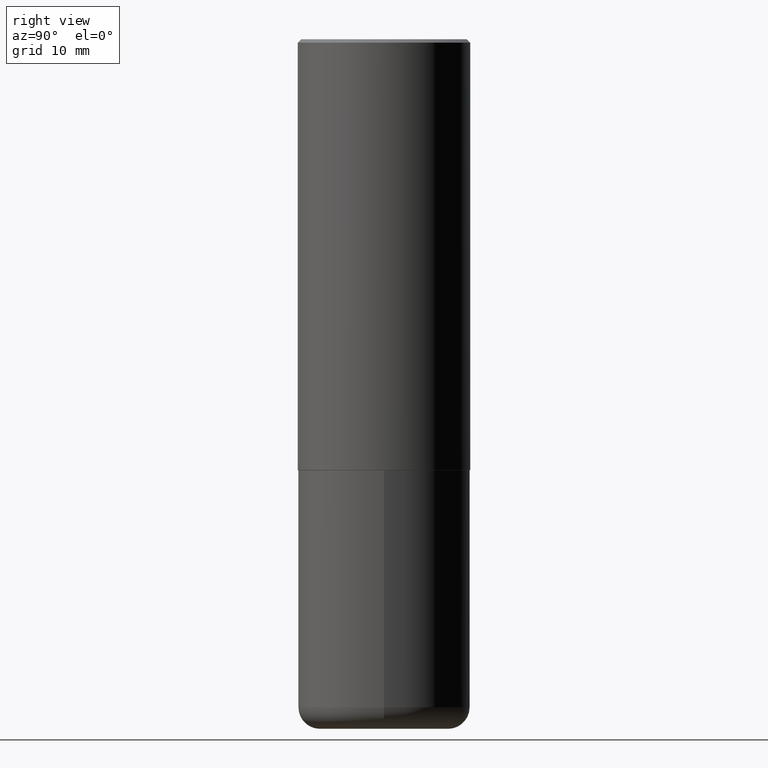
[diagram: clean part render]
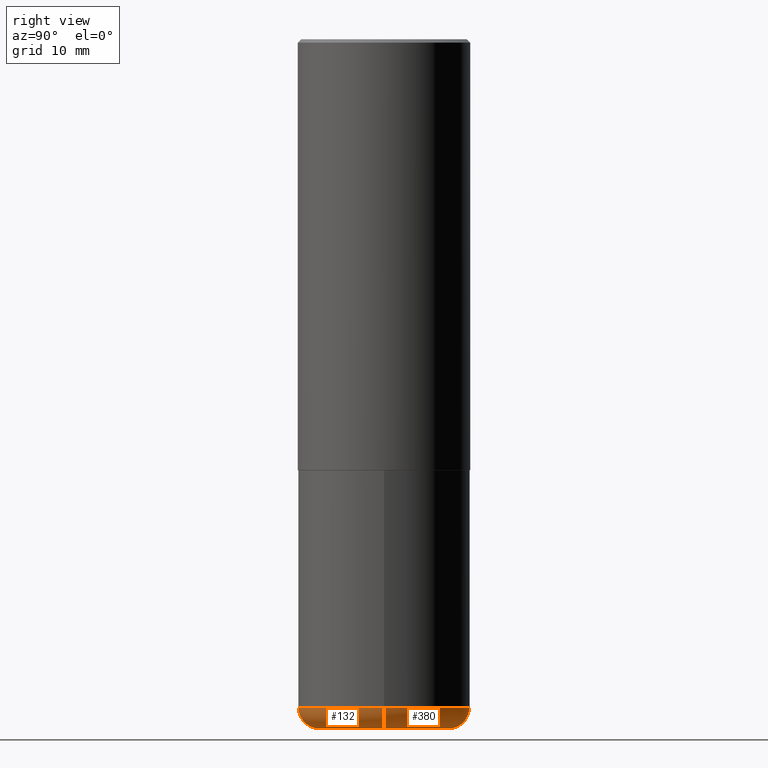
[diagram: same view with one multi-face feature highlighted, each face labeled with its STEP entity id]
A machine part, right view. The highlighted faces form ONE feature: a constant-radius fillet chain: 2 tangent blend faces with common blend radius 3.175 mm. The faces share edges in the B-rep.
Their STEP definitions:
[1] entity #380 (Torus):
#10 = CIRCLE ( 'NONE', #190, 0.1249999999999999584 ) ;
#33 = FACE_OUTER_BOUND ( 'NONE', #406, .T. ) ;
#49 = AXIS2_PLACEMENT_3D ( 'NONE', #301, #145, #305 ) ;
#66 = CARTESIAN_POINT ( 'NONE',  ( 0.5000000000000000000, -1.702097152686032086E-14, -3.875000000000000000 ) ) ;
#87 = AXIS2_PLACEMENT_3D ( 'NONE', #235, #358, #362 ) ;
#89 = DIRECTION ( 'NONE',  ( -1.000000000000000000, 7.105427357600998703E-15, 0.000000000000000000 ) ) ;
#119 = ORIENTED_EDGE ( 'NONE', *, *, #363, .F. ) ;
#127 = DIRECTION ( 'NONE',  ( -6.982962677686266711E-15, -1.000000000000000000, 3.491481338843145583E-15 ) ) ;
#143 = CARTESIAN_POINT ( 'NONE',  ( 0.3749999999999999445, -1.658453635950493392E-14, -4.000000000000000000 ) ) ;
#145 = DIRECTION ( 'NONE',  ( -2.445468806185136597E-29, 3.491481338843145583E-15, 1.000000000000000000 ) ) ;
#146 = EDGE_CURVE ( 'NONE', #315, #251, #10, .T. ) ;
#149 = ORIENTED_EDGE ( 'NONE', *, *, #370, .F. ) ;
#153 = AXIS2_PLACEMENT_3D ( 'NONE', #367, #127, #262 ) ;
#165 = VERTEX_POINT ( 'NONE', #66 ) ;
#176 = CIRCLE ( 'NONE', #49, 0.3749999999999999445 ) ;
#179 = CARTESIAN_POINT ( 'NONE',  ( -0.3749999999999999445, -1.063908330274444739E-14, -4.000000000000000000 ) ) ;
#188 = VERTEX_POINT ( 'NONE', #143 ) ;
#189 = DIRECTION ( 'NONE',  ( 7.105427357601001859E-15, 1.000000000000000000, -3.491481338843145583E-15 ) ) ;
#190 = AXIS2_PLACEMENT_3D ( 'NONE', #399, #189, #89 ) ;
#191 = AXIS2_PLACEMENT_3D ( 'NONE', #265, #334, #337 ) ;
#235 = CARTESIAN_POINT ( 'NONE',  ( 9.476191623967404313E-29, -1.352949018801718908E-14, -3.875000000000000000 ) ) ;
#251 = VERTEX_POINT ( 'NONE', #333 ) ;
#262 = DIRECTION ( 'NONE',  ( 1.000000000000000000, -6.982962677686265133E-15, 0.000000000000000000 ) ) ;
#263 = CIRCLE ( 'NONE', #153, 0.1249999999999999584 ) ;
#265 = CARTESIAN_POINT ( 'NONE',  ( 9.476191623967404313E-29, -1.352949018801718908E-14, -3.875000000000000000 ) ) ;
#296 = EDGE_CURVE ( 'NONE', #188, #315, #176, .T. ) ;
#301 = CARTESIAN_POINT ( 'NONE',  ( 9.781875224740546387E-29, -1.396592535537258233E-14, -4.000000000000000000 ) ) ;
#305 = DIRECTION ( 'NONE',  ( 1.000000000000000000, -6.982962677686269077E-15, 0.000000000000000000 ) ) ;
#307 = ORIENTED_EDGE ( 'NONE', *, *, #146, .T. ) ;
#315 = VERTEX_POINT ( 'NONE', #179 ) ;
#333 = CARTESIAN_POINT ( 'NONE',  ( -0.5000000000000000000, -9.976776509216686576E-15, -3.875000000000000000 ) ) ;
#334 = DIRECTION ( 'NONE',  ( -2.445468806185136597E-29, 3.491481338843145583E-15, 1.000000000000000000 ) ) ;
#337 = DIRECTION ( 'NONE',  ( 1.000000000000000000, -6.982962677686267499E-15, 4.883557194083114022E-29 ) ) ;
#358 = DIRECTION ( 'NONE',  ( -2.445468806185136597E-29, 3.491481338843145583E-15, 1.000000000000000000 ) ) ;
#362 = DIRECTION ( 'NONE',  ( 1.000000000000000000, -6.982962677686266711E-15, 0.000000000000000000 ) ) ;
#363 = EDGE_CURVE ( 'NONE', #188, #165, #263, .T. ) ;
#365 = TOROIDAL_SURFACE ( 'NONE', #191, 0.3749999999999999445, 0.1249999999999999584 ) ;
#367 = CARTESIAN_POINT ( 'NONE',  ( 0.3749999999999999445, -1.614810119214953752E-14, -3.875000000000000000 ) ) ;
#370 = EDGE_CURVE ( 'NONE', #165, #251, #395, .T. ) ;
#380 = ADVANCED_FACE ( 'NONE', ( #33 ), #365, .T. ) ;
#395 = CIRCLE ( 'NONE', #87, 0.5000000000000000000 ) ;
#399 = CARTESIAN_POINT ( 'NONE',  ( -0.3749999999999999445, -1.086495492891681339E-14, -3.875000000000000000 ) ) ;
#406 = EDGE_LOOP ( 'NONE', ( #408, #307, #149, #119 ) ) ;
#408 = ORIENTED_EDGE ( 'NONE', *, *, #296, .T. ) ;
[2] entity #132 (Torus):
#10 = CIRCLE ( 'NONE', #190, 0.1249999999999999584 ) ;
#37 = DIRECTION ( 'NONE',  ( -2.445468806185136597E-29, 3.491481338843145583E-15, 1.000000000000000000 ) ) ;
#56 = DIRECTION ( 'NONE',  ( 1.000000000000000000, -6.982962677686267499E-15, 4.883557194083114022E-29 ) ) ;
#66 = CARTESIAN_POINT ( 'NONE',  ( 0.5000000000000000000, -1.702097152686032086E-14, -3.875000000000000000 ) ) ;
#71 = AXIS2_PLACEMENT_3D ( 'NONE', #203, #411, #200 ) ;
#77 = CARTESIAN_POINT ( 'NONE',  ( 9.476191623967404313E-29, -1.352949018801718908E-14, -3.875000000000000000 ) ) ;
#89 = DIRECTION ( 'NONE',  ( -1.000000000000000000, 7.105427357600998703E-15, 0.000000000000000000 ) ) ;
#103 = ORIENTED_EDGE ( 'NONE', *, *, #363, .T. ) ;
#122 = EDGE_LOOP ( 'NONE', ( #275, #277, #103, #413 ) ) ;
#127 = DIRECTION ( 'NONE',  ( -6.982962677686266711E-15, -1.000000000000000000, 3.491481338843145583E-15 ) ) ;
#132 = ADVANCED_FACE ( 'NONE', ( #302 ), #205, .T. ) ;
#143 = CARTESIAN_POINT ( 'NONE',  ( 0.3749999999999999445, -1.658453635950493392E-14, -4.000000000000000000 ) ) ;
#146 = EDGE_CURVE ( 'NONE', #315, #251, #10, .T. ) ;
#153 = AXIS2_PLACEMENT_3D ( 'NONE', #367, #127, #262 ) ;
#163 = EDGE_CURVE ( 'NONE', #315, #188, #394, .T. ) ;
#165 = VERTEX_POINT ( 'NONE', #66 ) ;
#179 = CARTESIAN_POINT ( 'NONE',  ( -0.3749999999999999445, -1.063908330274444739E-14, -4.000000000000000000 ) ) ;
#188 = VERTEX_POINT ( 'NONE', #143 ) ;
#189 = DIRECTION ( 'NONE',  ( 7.105427357601001859E-15, 1.000000000000000000, -3.491481338843145583E-15 ) ) ;
#190 = AXIS2_PLACEMENT_3D ( 'NONE', #399, #189, #89 ) ;
#200 = DIRECTION ( 'NONE',  ( 1.000000000000000000, -6.982962677686269077E-15, 0.000000000000000000 ) ) ;
#201 = DIRECTION ( 'NONE',  ( 1.000000000000000000, -6.982962677686266711E-15, 0.000000000000000000 ) ) ;
#203 = CARTESIAN_POINT ( 'NONE',  ( 9.781875224740546387E-29, -1.396592535537258233E-14, -4.000000000000000000 ) ) ;
#205 = TOROIDAL_SURFACE ( 'NONE', #325, 0.3749999999999999445, 0.1249999999999999584 ) ;
#209 = CARTESIAN_POINT ( 'NONE',  ( 9.476191623967404313E-29, -1.352949018801718908E-14, -3.875000000000000000 ) ) ;
#217 = DIRECTION ( 'NONE',  ( -2.445468806185136597E-29, 3.491481338843145583E-15, 1.000000000000000000 ) ) ;
#240 = AXIS2_PLACEMENT_3D ( 'NONE', #209, #37, #201 ) ;
#251 = VERTEX_POINT ( 'NONE', #333 ) ;
#262 = DIRECTION ( 'NONE',  ( 1.000000000000000000, -6.982962677686265133E-15, 0.000000000000000000 ) ) ;
#263 = CIRCLE ( 'NONE', #153, 0.1249999999999999584 ) ;
#275 = ORIENTED_EDGE ( 'NONE', *, *, #146, .F. ) ;
#276 = EDGE_CURVE ( 'NONE', #251, #165, #357, .T. ) ;
#277 = ORIENTED_EDGE ( 'NONE', *, *, #163, .T. ) ;
#302 = FACE_OUTER_BOUND ( 'NONE', #122, .T. ) ;
#315 = VERTEX_POINT ( 'NONE', #179 ) ;
#325 = AXIS2_PLACEMENT_3D ( 'NONE', #77, #217, #56 ) ;
#333 = CARTESIAN_POINT ( 'NONE',  ( -0.5000000000000000000, -9.976776509216686576E-15, -3.875000000000000000 ) ) ;
#357 = CIRCLE ( 'NONE', #240, 0.5000000000000000000 ) ;
#363 = EDGE_CURVE ( 'NONE', #188, #165, #263, .T. ) ;
#367 = CARTESIAN_POINT ( 'NONE',  ( 0.3749999999999999445, -1.614810119214953752E-14, -3.875000000000000000 ) ) ;
#394 = CIRCLE ( 'NONE', #71, 0.3749999999999999445 ) ;
#399 = CARTESIAN_POINT ( 'NONE',  ( -0.3749999999999999445, -1.086495492891681339E-14, -3.875000000000000000 ) ) ;
#411 = DIRECTION ( 'NONE',  ( -2.445468806185136597E-29, 3.491481338843145583E-15, 1.000000000000000000 ) ) ;
#413 = ORIENTED_EDGE ( 'NONE', *, *, #276, .F. ) ;